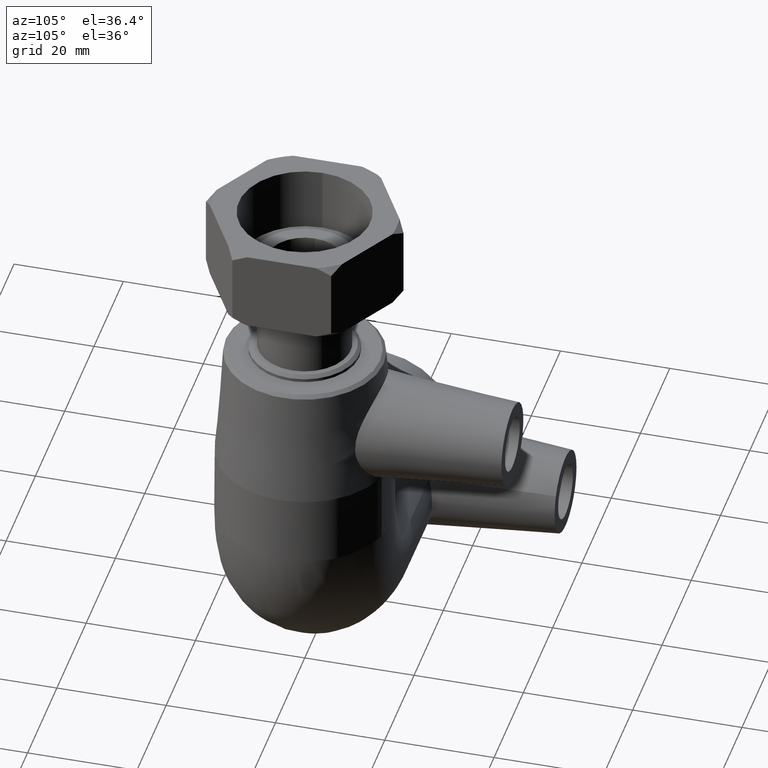
[diagram: clean part render]
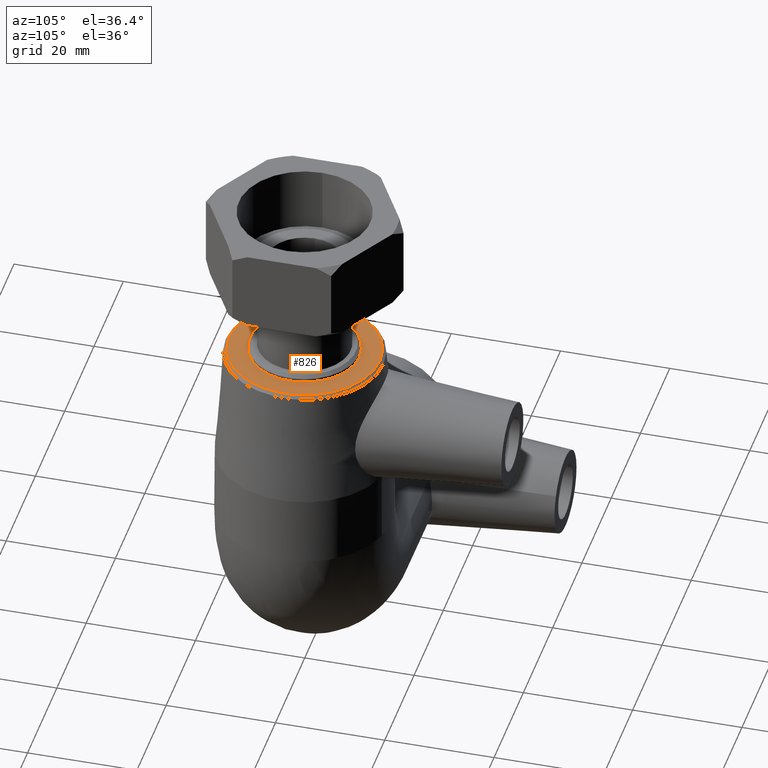
[diagram: same view with one face highlighted and labeled with its STEP entity id]
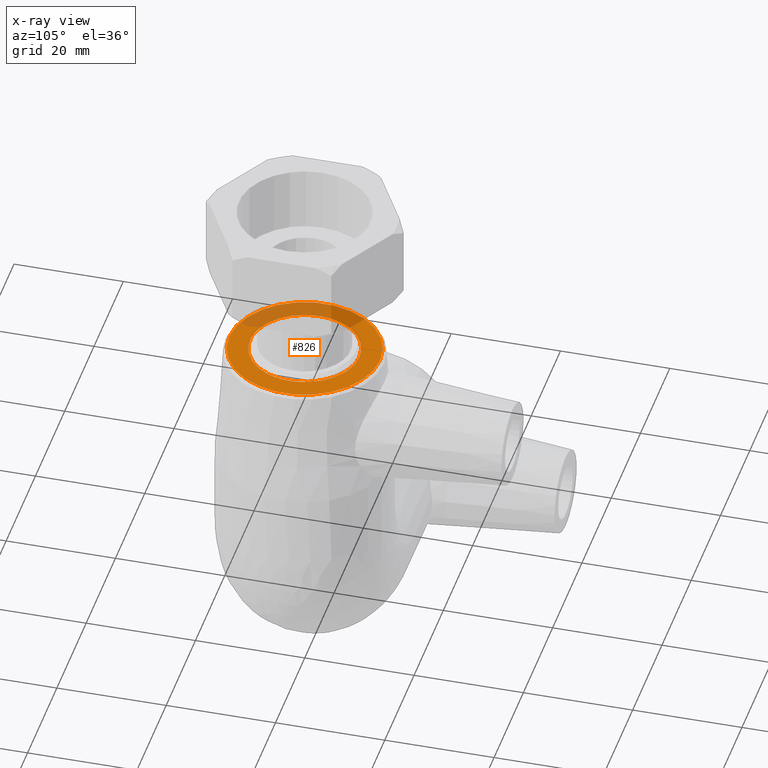
[diagram: x-ray of the same camera — body ghosted, the highlighted face saturated]
A machine part, auxiliary view. The second image highlights one B-rep face of the part: STEP entity #826.
The next image is the same camera in x-ray: the body ghosted, the highlighted face saturated — about 29% of this face is hidden behind the body in this view.
In plain terms, the highlighted planar face has unit normal (-0, 0, 1).
Its self-contained STEP definition (entity closure, byte-faithful):
#109=PLANE('',#922);
#135=FACE_BOUND('',#271,.T.);
#193=FACE_OUTER_BOUND('',#270,.T.);
#270=EDGE_LOOP('',(#700));
#271=EDGE_LOOP('',(#701));
#346=CIRCLE('',#905,10.);
#354=CIRCLE('',#920,13.8);
#424=VERTEX_POINT('',#1410);
#434=VERTEX_POINT('',#1471);
#522=EDGE_CURVE('',#424,#424,#346,.T.);
#532=EDGE_CURVE('',#434,#434,#354,.T.);
#700=ORIENTED_EDGE('',*,*,#532,.F.);
#701=ORIENTED_EDGE('',*,*,#522,.T.);
#826=ADVANCED_FACE('',(#193,#135),#109,.T.);
#905=AXIS2_PLACEMENT_3D('',#1411,#1086,#1087);
#920=AXIS2_PLACEMENT_3D('',#1472,#1116,#1117);
#922=AXIS2_PLACEMENT_3D('',#1475,#1120,#1121);
#1086=DIRECTION('center_axis',(6.12323399573677E-17,-2.77555756156289E-18,
-1.));
#1087=DIRECTION('ref_axis',(-1.,0.,-6.12323399573677E-17));
#1116=DIRECTION('center_axis',(6.12323399573677E-17,-2.77555756156289E-18,
-1.));
#1117=DIRECTION('ref_axis',(-1.69953884180861E-34,-1.,2.77555756156289E-18));
#1120=DIRECTION('center_axis',(-6.12323399573677E-17,2.77555756156289E-18,
1.));
#1121=DIRECTION('ref_axis',(1.,0.,0.));
#1410=CARTESIAN_POINT('',(-3.06161699786838E-15,10.,50.));
#1411=CARTESIAN_POINT('Origin',(-3.06161699786838E-15,0.,50.));
#1471=CARTESIAN_POINT('',(-1.37160441504504E-15,13.8,50.));
#1472=CARTESIAN_POINT('Origin',(-3.06161699786838E-15,-2.16667118743564E-33,
50.));
#1475=CARTESIAN_POINT('Origin',(-3.06161699786838E-15,14.4,50.));